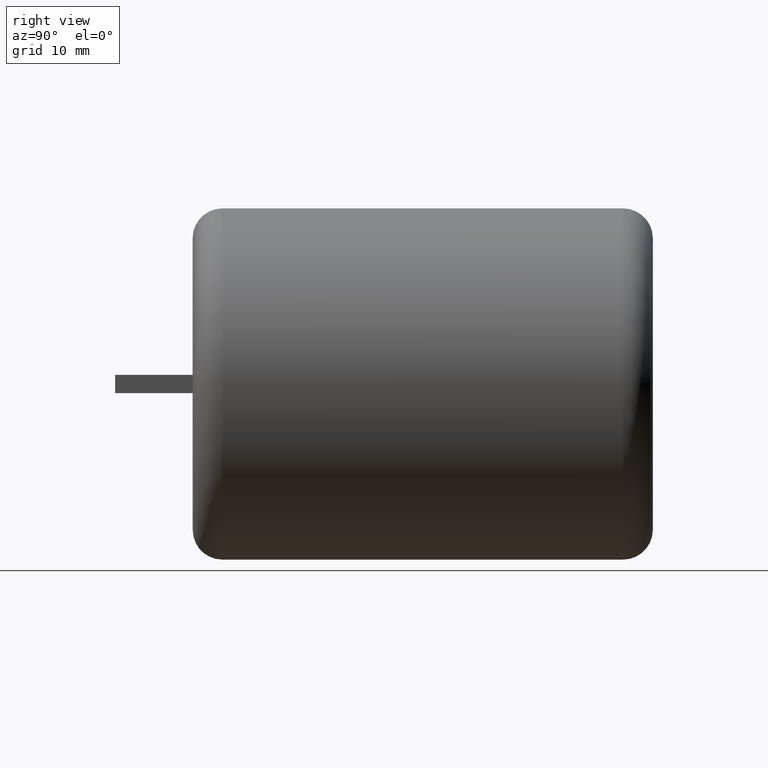
[diagram: clean part render]
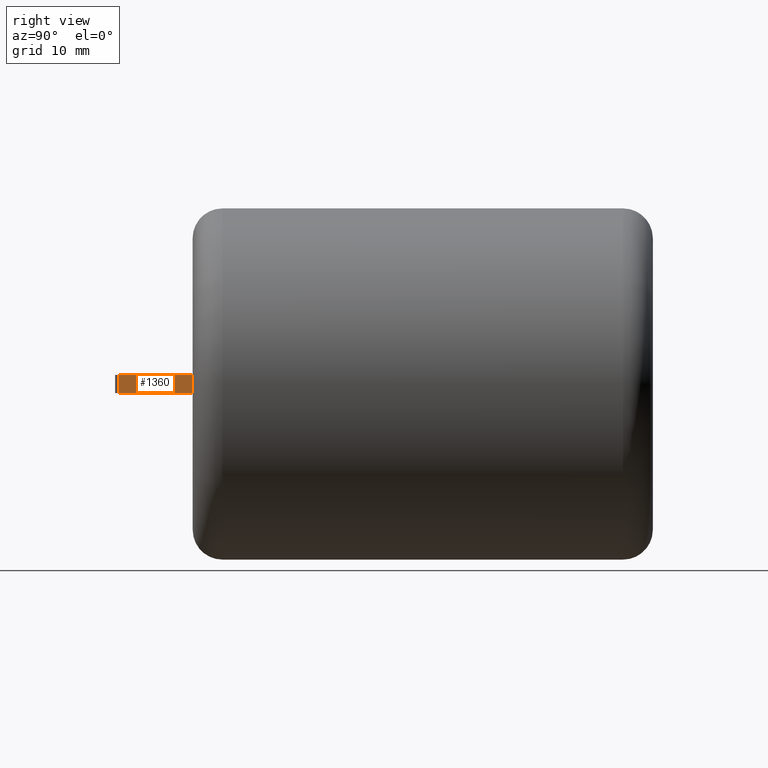
[diagram: same view with one face highlighted and labeled with its STEP entity id]
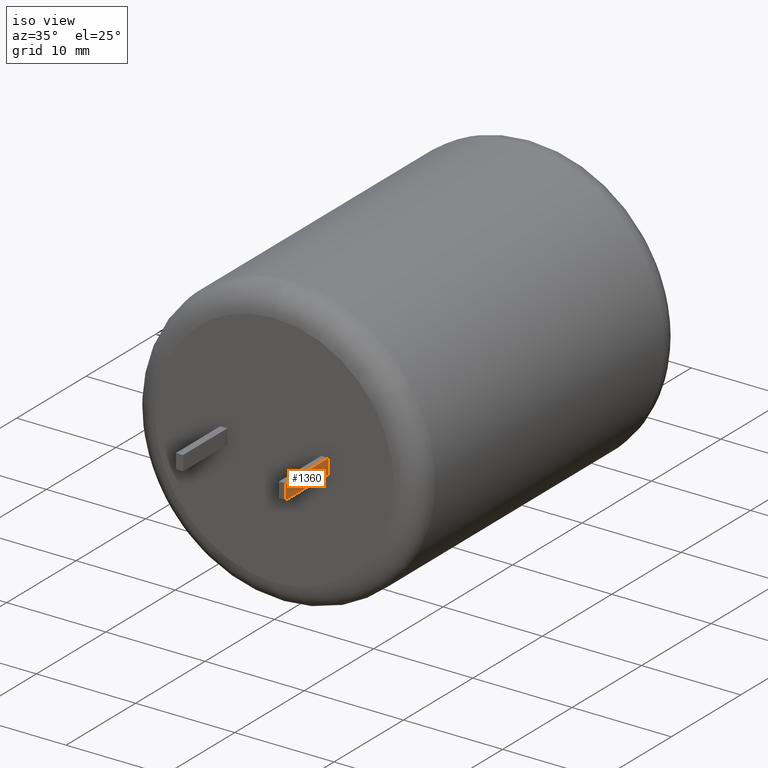
[diagram: same view with one face highlighted and labeled with its STEP entity id]
A machine part, right view. The second image highlights one B-rep face of the part: STEP entity #1360.
A second angle (iso view) of the same face is appended — the face is thin or edge-on in the first view.
In plain terms, the highlighted planar face has unit normal (-1, 0, 0).
Its self-contained STEP definition (entity closure, byte-faithful):
#67 = LINE ( 'NONE', #1143, #2316 ) ;
#304 = ORIENTED_EDGE ( 'NONE', *, *, #1446, .F. ) ;
#388 = PLANE ( 'NONE',  #1763 ) ;
#436 = CARTESIAN_POINT ( 'NONE',  ( 5.430000000000000600, 0.0000000000000000000, -0.7500000000000042200 ) ) ;
#461 = VECTOR ( 'NONE', #1673, 1000.000000000000000 ) ;
#519 = EDGE_CURVE ( 'NONE', #563, #1816, #67, .T. ) ;
#524 = CARTESIAN_POINT ( 'NONE',  ( 5.430000000000000600, 0.0000000000000000000, -3.122849337825750200E-015 ) ) ;
#563 = VERTEX_POINT ( 'NONE', #972 ) ;
#684 = DIRECTION ( 'NONE',  ( 0.0000000000000000000, 0.0000000000000000000, 1.000000000000000000 ) ) ;
#728 = ORIENTED_EDGE ( 'NONE', *, *, #519, .T. ) ;
#755 = ORIENTED_EDGE ( 'NONE', *, *, #1369, .F. ) ;
#814 = VERTEX_POINT ( 'NONE', #1856 ) ;
#834 = CARTESIAN_POINT ( 'NONE',  ( 5.430000000000000600, -6.099999999999999600, 0.7499999999999980000 ) ) ;
#901 = DIRECTION ( 'NONE',  ( -0.0000000000000000000, 1.000000000000000000, -0.0000000000000000000 ) ) ;
#972 = CARTESIAN_POINT ( 'NONE',  ( 5.430000000000000600, -6.099999999999999600, -0.7500000000000042200 ) ) ;
#1008 = LINE ( 'NONE', #834, #461 ) ;
#1062 = DIRECTION ( 'NONE',  ( 0.0000000000000000000, 0.0000000000000000000, 1.000000000000000000 ) ) ;
#1143 = CARTESIAN_POINT ( 'NONE',  ( 5.430000000000000600, -6.099999999999999600, -0.7500000000000042200 ) ) ;
#1152 = ORIENTED_EDGE ( 'NONE', *, *, #2155, .T. ) ;
#1296 = VERTEX_POINT ( 'NONE', #1865 ) ;
#1360 = ADVANCED_FACE ( 'NONE', ( #2501 ), #388, .F. ) ;
#1369 = EDGE_CURVE ( 'NONE', #1296, #814, #1008, .T. ) ;
#1406 = CARTESIAN_POINT ( 'NONE',  ( 5.430000000000000600, -6.099999999999999600, -0.7500000000000042200 ) ) ;
#1446 = EDGE_CURVE ( 'NONE', #563, #1296, #2660, .T. ) ;
#1471 = LINE ( 'NONE', #524, #2414 ) ;
#1673 = DIRECTION ( 'NONE',  ( -0.0000000000000000000, 1.000000000000000000, -0.0000000000000000000 ) ) ;
#1763 = AXIS2_PLACEMENT_3D ( 'NONE', #2281, #1928, #684 ) ;
#1816 = VERTEX_POINT ( 'NONE', #436 ) ;
#1856 = CARTESIAN_POINT ( 'NONE',  ( 5.430000000000000600, 0.0000000000000000000, 0.7499999999999980000 ) ) ;
#1865 = CARTESIAN_POINT ( 'NONE',  ( 5.430000000000000600, -6.099999999999999600, 0.7499999999999980000 ) ) ;
#1928 = DIRECTION ( 'NONE',  ( -1.000000000000000000, 0.0000000000000000000, 0.0000000000000000000 ) ) ;
#2155 = EDGE_CURVE ( 'NONE', #1816, #814, #1471, .T. ) ;
#2194 = EDGE_LOOP ( 'NONE', ( #1152, #755, #304, #728 ) ) ;
#2281 = CARTESIAN_POINT ( 'NONE',  ( 5.430000000000000600, -6.099999999999999600, -3.122849337825750200E-015 ) ) ;
#2316 = VECTOR ( 'NONE', #901, 1000.000000000000000 ) ;
#2359 = VECTOR ( 'NONE', #2442, 1000.000000000000000 ) ;
#2414 = VECTOR ( 'NONE', #1062, 1000.000000000000000 ) ;
#2442 = DIRECTION ( 'NONE',  ( 0.0000000000000000000, 0.0000000000000000000, 1.000000000000000000 ) ) ;
#2501 = FACE_OUTER_BOUND ( 'NONE', #2194, .T. ) ;
#2660 = LINE ( 'NONE', #1406, #2359 ) ;